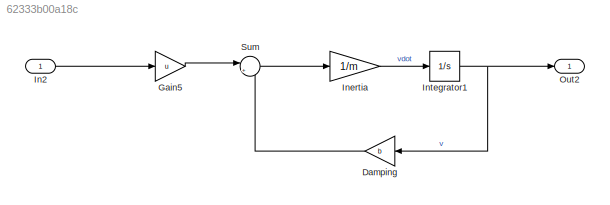
MODEL slx_62333b00a18c
KIND model
CONFIG AbsTol = auto
CONFIG EnableMultiTasking = off
CONFIG FixedStep = auto
CONFIG MaxStep = auto
CONFIG MinStep = auto
CONFIG PreLoadFcn = b = 50;\nm = 1000;\nu = 500;
CONFIG RelTol = 1e-3
CONFIG SampleTimeConstraint = Unconstrained
CONFIG SolverName = VariableStepAuto
CONFIG StartTime = 0.0
CONFIG StopTime = 10.0
BLOCK [Gain] Damping
  Gain = b
BLOCK [Gain] Gain5
  Gain = u
BLOCK [Inport] In2
  OutDataTypeStr = double
  PortDimensions = 1
  SampleTime = 0
  SamplingMode = Sample based
  SignalType = real
BLOCK [Gain] Inertia
  Gain = 1/m
BLOCK [Integrator] Integrator1
  Ports = [1, 1]
BLOCK [Outport] Out2
  OutDataTypeStr = double
  PortDimensions = 1
  SampleTime = 0
  SamplingMode = Sample based
  SignalType = real
BLOCK [Sum] Sum
  Inputs = |+-
  Ports = [2, 1]
LINE Damping:1 -> Sum:2
LINE Gain5:1 -> Sum:1
LINE In2:1 -> Gain5:1
LINE Inertia:1 -> Integrator1:1
NET Integrator1:1 -> Damping:1, Out2:1
LINE Sum:1 -> Inertia:1
note: NET lines group one-source signal fan-out (src -> all destinations, sorted); 1:1 wires keep LINE
